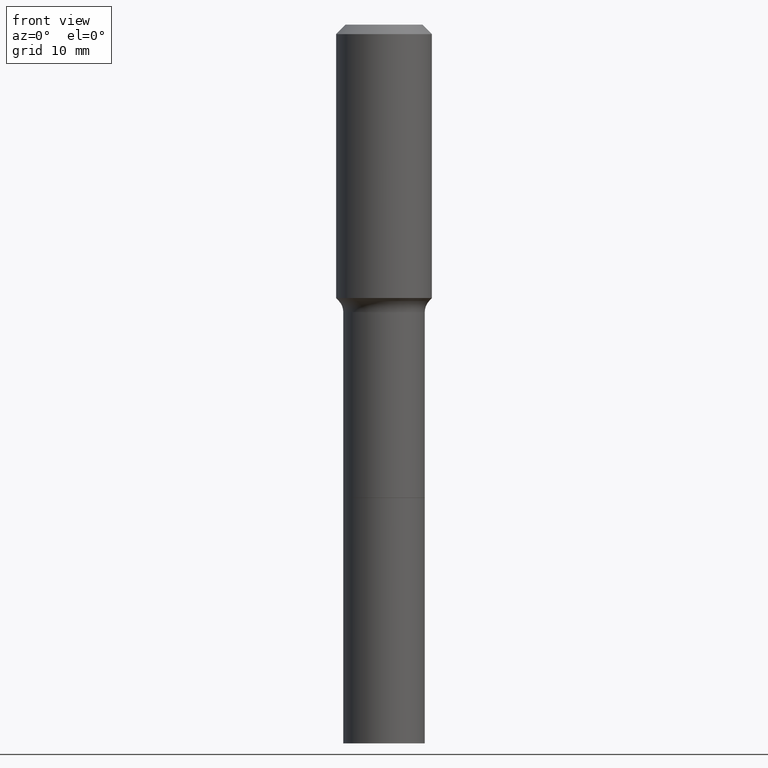
[diagram: clean part render]
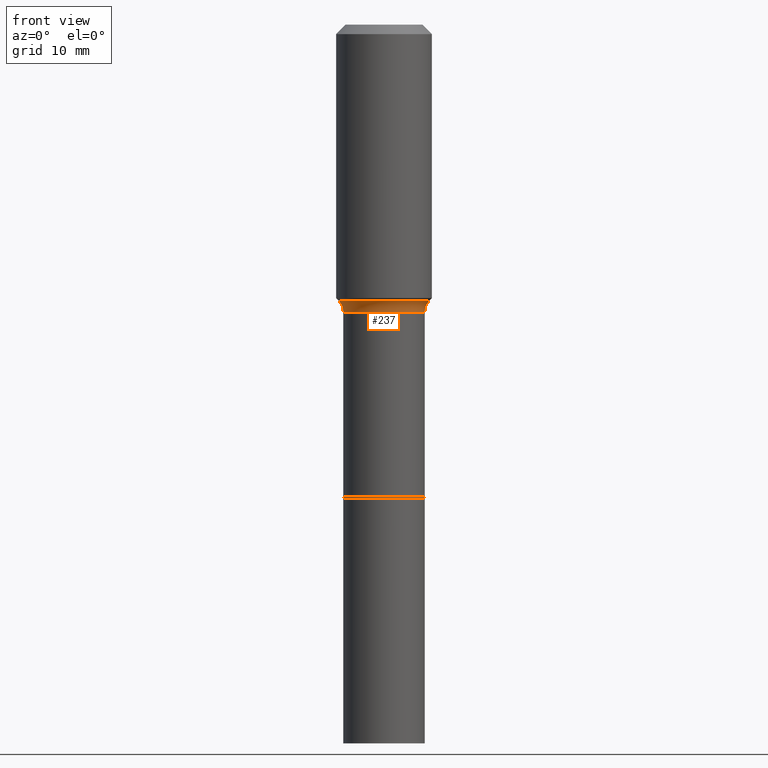
[diagram: same view with one face highlighted and labeled with its STEP entity id]
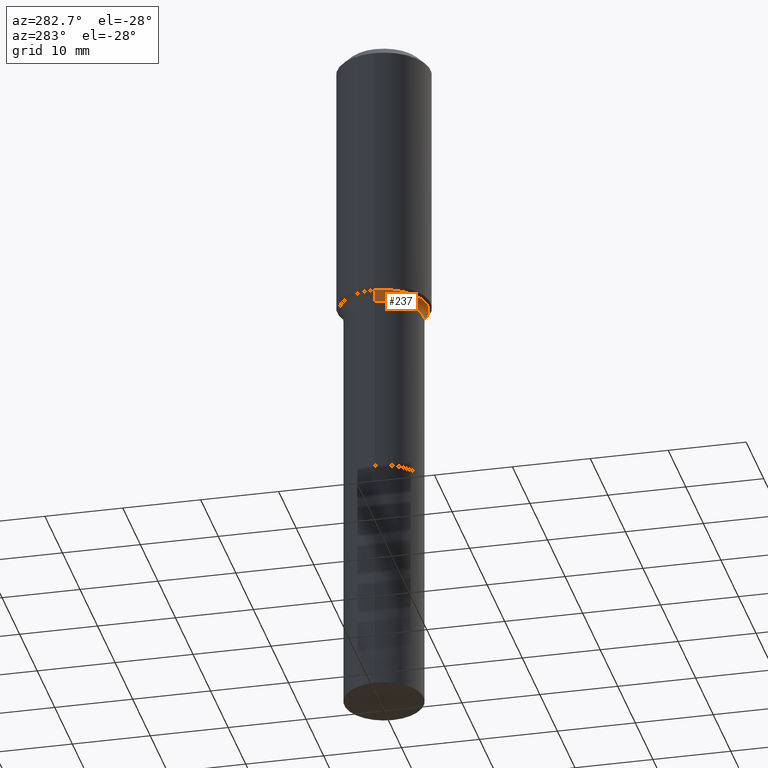
[diagram: same view with one face highlighted and labeled with its STEP entity id]
A machine part, front view. The second image highlights one B-rep face of the part: STEP entity #237.
A second angle (auxiliary view) of the same face is appended — the face is thin or edge-on in the first view.
In plain terms, the highlighted toroidal blend (fillet) surface has major radius 7.1323 mm and minor (blend) radius 2.032 mm.
Its self-contained STEP definition (entity closure, byte-faithful):
#28 = DIRECTION ( 'NONE',  ( -2.445468806185136597E-29, 3.491481338843145583E-15, 1.000000000000000000 ) ) ;
#34 = EDGE_CURVE ( 'NONE', #315, #183, #418, .T. ) ;
#36 = CARTESIAN_POINT ( 'NONE',  ( 0.2007999999999999230, -6.350655407221791807E-15, -1.417300000000000004 ) ) ;
#65 = CIRCLE ( 'NONE', #411, 0.2007999999999999230 ) ;
#68 = DIRECTION ( 'NONE',  ( 1.000000000000000000, -6.982962677686265922E-15, 0.000000000000000000 ) ) ;
#91 = CARTESIAN_POINT ( 'NONE',  ( 0.2807999999999999385, -6.909292421436693459E-15, -1.417300000000000004 ) ) ;
#114 = CARTESIAN_POINT ( 'NONE',  ( 3.465962939006193759E-29, -4.948476501542390442E-15, -1.417300000000000004 ) ) ;
#116 = CARTESIAN_POINT ( 'NONE',  ( -0.2007999999999999230, -5.118186530322137150E-15, -1.417300000000000004 ) ) ;
#143 = DIRECTION ( 'NONE',  ( 1.000000000000000000, -6.982962677686266711E-15, 4.883557194083112901E-29 ) ) ;
#151 = FACE_OUTER_BOUND ( 'NONE', #489, .T. ) ;
#161 = DIRECTION ( 'NONE',  ( 1.000000000000000000, -6.982962677686265133E-15, 0.000000000000000000 ) ) ;
#181 = DIRECTION ( 'NONE',  ( 1.000000000000000000, -6.982962677686262766E-15, 0.000000000000000000 ) ) ;
#183 = VERTEX_POINT ( 'NONE', #36 ) ;
#195 = ORIENTED_EDGE ( 'NONE', *, *, #496, .T. ) ;
#207 = ORIENTED_EDGE ( 'NONE', *, *, #324, .T. ) ;
#208 = DIRECTION ( 'NONE',  ( -2.445468806185136597E-29, 3.491481338843145583E-15, 1.000000000000000000 ) ) ;
#215 = AXIS2_PLACEMENT_3D ( 'NONE', #337, #226, #307 ) ;
#223 = AXIS2_PLACEMENT_3D ( 'NONE', #91, #248, #181 ) ;
#226 = DIRECTION ( 'NONE',  ( 7.105427357601001859E-15, 1.000000000000000000, -3.491481338843145583E-15 ) ) ;
#228 = CIRCLE ( 'NONE', #215, 0.07999999999999996003 ) ;
#237 = ADVANCED_FACE ( 'NONE', ( #151 ), #287, .F. ) ;
#238 = ORIENTED_EDGE ( 'NONE', *, *, #509, .F. ) ;
#248 = DIRECTION ( 'NONE',  ( -6.982962677686266711E-15, -1.000000000000000000, 3.491481338843145583E-15 ) ) ;
#251 = AXIS2_PLACEMENT_3D ( 'NONE', #114, #28, #143 ) ;
#256 = CARTESIAN_POINT ( 'NONE',  ( 3.332538481774012867E-29, -4.757981737760002382E-15, -1.362740131195000037 ) ) ;
#273 = CARTESIAN_POINT ( 'NONE',  ( 3.465962939006193759E-29, -4.948476501542390442E-15, -1.417300000000000004 ) ) ;
#287 = TOROIDAL_SURFACE ( 'NONE', #251, 0.2807999999999999385, 0.07999999999999993228 ) ;
#298 = AXIS2_PLACEMENT_3D ( 'NONE', #256, #311, #68 ) ;
#307 = DIRECTION ( 'NONE',  ( -1.000000000000000000, 7.105427357601001859E-15, 0.000000000000000000 ) ) ;
#311 = DIRECTION ( 'NONE',  ( -2.445468806185136597E-29, 3.491481338843145583E-15, 1.000000000000000000 ) ) ;
#315 = VERTEX_POINT ( 'NONE', #490 ) ;
#324 = EDGE_CURVE ( 'NONE', #362, #183, #65, .T. ) ;
#337 = CARTESIAN_POINT ( 'NONE',  ( -0.2807999999999999385, -2.953272499528029557E-15, -1.417300000000000004 ) ) ;
#343 = ORIENTED_EDGE ( 'NONE', *, *, #34, .F. ) ;
#362 = VERTEX_POINT ( 'NONE', #116 ) ;
#366 = VERTEX_POINT ( 'NONE', #370 ) ;
#370 = CARTESIAN_POINT ( 'NONE',  ( -0.2222917038704663173, -3.178504183711050894E-15, -1.362740131195000037 ) ) ;
#411 = AXIS2_PLACEMENT_3D ( 'NONE', #273, #208, #161 ) ;
#418 = CIRCLE ( 'NONE', #223, 0.07999999999999996003 ) ;
#489 = EDGE_LOOP ( 'NONE', ( #238, #195, #207, #343 ) ) ;
#490 = CARTESIAN_POINT ( 'NONE',  ( 0.2222917038704663173, -6.310236409446755692E-15, -1.362740131195000037 ) ) ;
#492 = CIRCLE ( 'NONE', #298, 0.2222917038704662618 ) ;
#496 = EDGE_CURVE ( 'NONE', #366, #362, #228, .T. ) ;
#509 = EDGE_CURVE ( 'NONE', #366, #315, #492, .T. ) ;